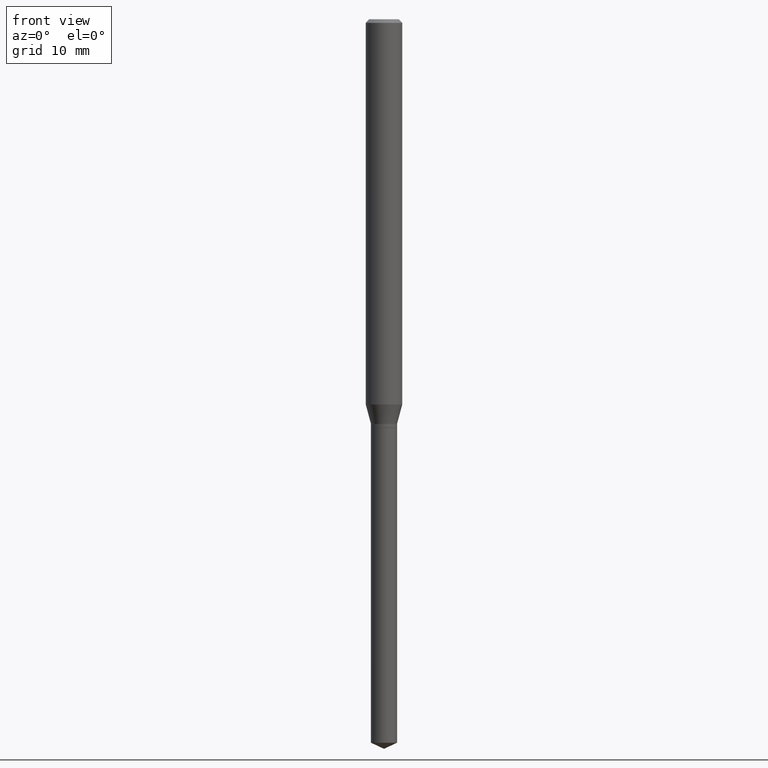
[diagram: clean part render]
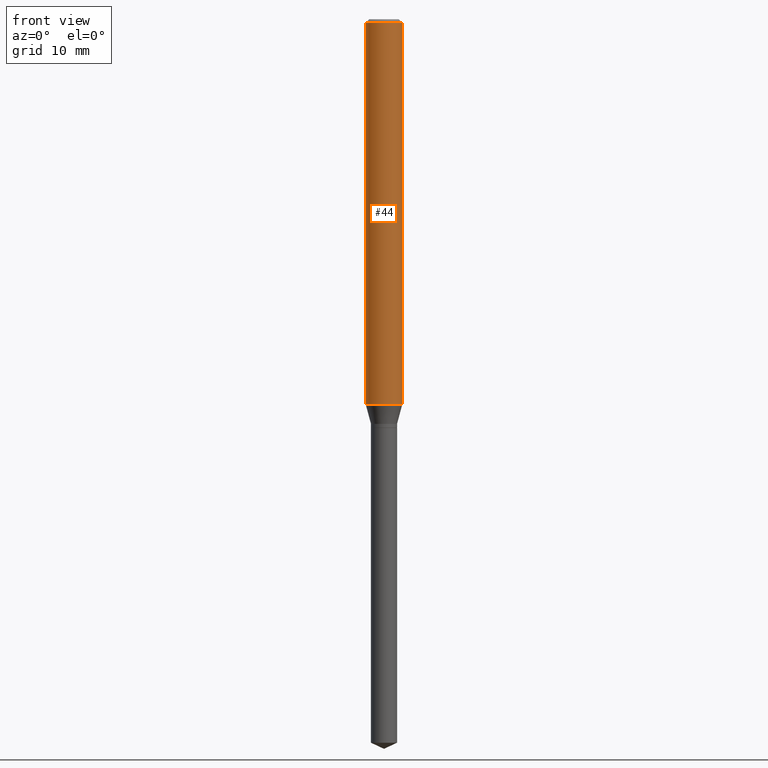
[diagram: same view with one face highlighted and labeled with its STEP entity id]
A machine part, front view. The second image highlights one B-rep face of the part: STEP entity #44.
In plain terms, the highlighted cylindrical surface (edge-blend (fillet) strip) has radius 1.4999 mm, axis along (-0, 0, 1).
Its self-contained STEP definition (entity closure, byte-faithful):
#10 = VERTEX_POINT ( 'NONE', #488 ) ;
#23 = VERTEX_POINT ( 'NONE', #195 ) ;
#28 = CARTESIAN_POINT ( 'NONE',  ( 3.050937901280267645E-29, -4.355930740701863379E-15, -1.247588148973221012 ) ) ;
#34 = EDGE_LOOP ( 'NONE', ( #224, #242, #330, #485 ) ) ;
#44 = ADVANCED_FACE ( 'NONE', ( #308 ), #153, .T. ) ;
#75 = DIRECTION ( 'NONE',  ( -2.445468806185136597E-29, 3.491481338843145583E-15, 1.000000000000000000 ) ) ;
#107 = VERTEX_POINT ( 'NONE', #238 ) ;
#114 = CIRCLE ( 'NONE', #456, 0.05905000000000015098 ) ;
#124 = DIRECTION ( 'NONE',  ( -2.445468806185136597E-29, 3.491481338843145583E-15, 1.000000000000000000 ) ) ;
#128 = LINE ( 'NONE', #279, #468 ) ;
#138 = DIRECTION ( 'NONE',  ( -2.445468806185136877E-29, 3.491481338843145188E-15, 1.000000000000000000 ) ) ;
#144 = CARTESIAN_POINT ( 'NONE',  ( -0.05905000000000007465, 4.195754854663396902E-16, -2.904631170795525395E-30 ) ) ;
#146 = EDGE_CURVE ( 'NONE', #10, #107, #128, .T. ) ;
#153 = CYLINDRICAL_SURFACE ( 'NONE', #155, 0.05905000000000007465 ) ;
#155 = AXIS2_PLACEMENT_3D ( 'NONE', #267, #75, #459 ) ;
#156 = VECTOR ( 'NONE', #138, 39.37007874015748143 ) ;
#195 = CARTESIAN_POINT ( 'NONE',  ( -0.05905000000000015098, -3.936355255235523098E-15, -1.247588148973221012 ) ) ;
#224 = ORIENTED_EDGE ( 'NONE', *, *, #414, .F. ) ;
#238 = CARTESIAN_POINT ( 'NONE',  ( 0.05904999999999999832, -4.535783407291118600E-16, -0.01181000000000007218 ) ) ;
#242 = ORIENTED_EDGE ( 'NONE', *, *, #423, .T. ) ;
#250 = CARTESIAN_POINT ( 'NONE',  ( -0.05904999999999999832, -1.779007082190460272E-15, -0.01181000000000007218 ) ) ;
#267 = CARTESIAN_POINT ( 'NONE',  ( 0.000000000000000000, 0.000000000000000000, 0.000000000000000000 ) ) ;
#272 = EDGE_CURVE ( 'NONE', #412, #107, #325, .T. ) ;
#279 = CARTESIAN_POINT ( 'NONE',  ( 0.05905000000000007465, -4.123439461173745750E-16, 2.879382386107504074E-30 ) ) ;
#282 = DIRECTION ( 'NONE',  ( 1.000000000000000000, -6.982962677686266711E-15, 0.000000000000000000 ) ) ;
#308 = FACE_OUTER_BOUND ( 'NONE', #34, .T. ) ;
#325 = CIRCLE ( 'NONE', #415, 0.05904999999999999832 ) ;
#330 = ORIENTED_EDGE ( 'NONE', *, *, #146, .T. ) ;
#372 = LINE ( 'NONE', #144, #156 ) ;
#412 = VERTEX_POINT ( 'NONE', #250 ) ;
#414 = EDGE_CURVE ( 'NONE', #23, #412, #372, .T. ) ;
#415 = AXIS2_PLACEMENT_3D ( 'NONE', #426, #124, #282 ) ;
#423 = EDGE_CURVE ( 'NONE', #23, #10, #114, .T. ) ;
#426 = CARTESIAN_POINT ( 'NONE',  ( 2.888098660104664204E-31, -4.123439461173780263E-17, -0.01181000000000007218 ) ) ;
#427 = DIRECTION ( 'NONE',  ( -2.445468806185136877E-29, 3.491481338843145188E-15, 1.000000000000000000 ) ) ;
#432 = DIRECTION ( 'NONE',  ( -2.445468806185136597E-29, 3.491481338843145583E-15, 1.000000000000000000 ) ) ;
#439 = DIRECTION ( 'NONE',  ( 1.000000000000000000, -6.982962677686271444E-15, 0.000000000000000000 ) ) ;
#456 = AXIS2_PLACEMENT_3D ( 'NONE', #28, #432, #439 ) ;
#459 = DIRECTION ( 'NONE',  ( 1.000000000000000000, -6.982962677686266711E-15, 4.876176775795936353E-29 ) ) ;
#468 = VECTOR ( 'NONE', #427, 39.37007874015748143 ) ;
#485 = ORIENTED_EDGE ( 'NONE', *, *, #272, .F. ) ;
#488 = CARTESIAN_POINT ( 'NONE',  ( 0.05905000000000015098, -4.768274686819239088E-15, -1.247588148973221012 ) ) ;